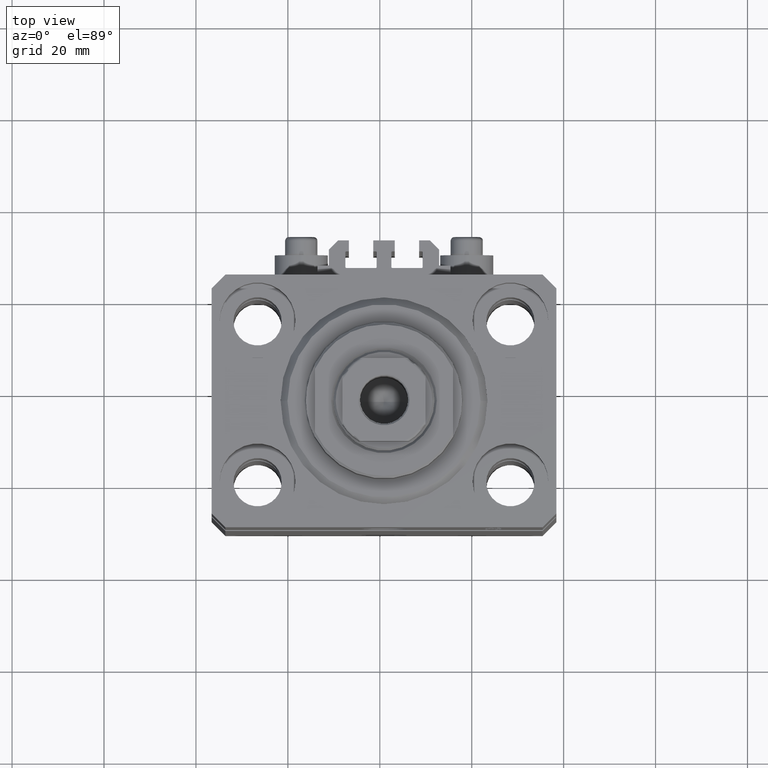
[diagram: clean part render]
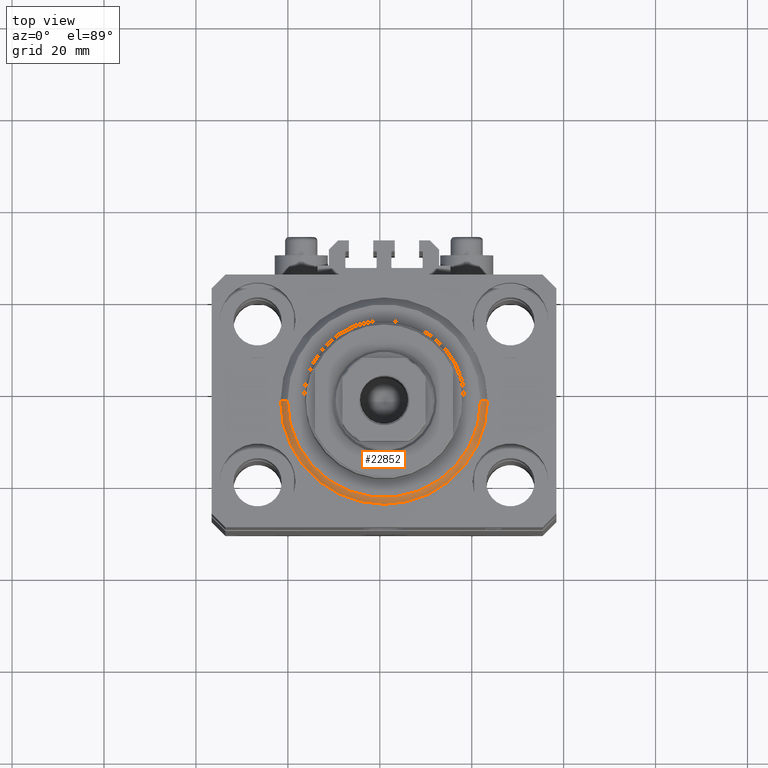
[diagram: same view with one face highlighted and labeled with its STEP entity id]
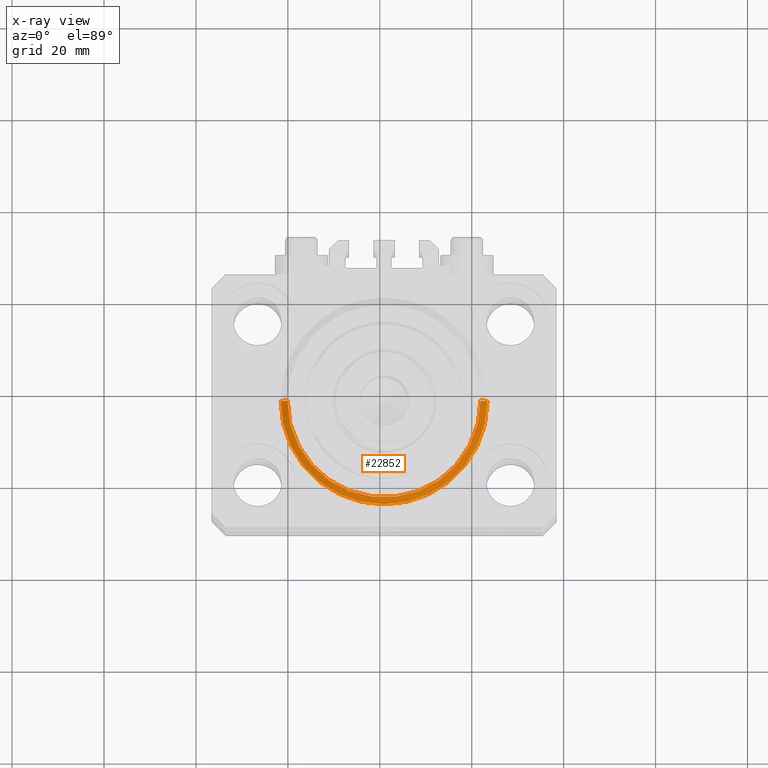
[diagram: x-ray of the same camera — body ghosted, the highlighted face saturated]
A machine part, top view. The second image highlights one B-rep face of the part: STEP entity #22852.
The next image is the same camera in x-ray: the body ghosted, the highlighted face saturated — about 0% of this face is hidden behind the body in this view.
In plain terms, the highlighted conical surface has half-angle 45 deg.
Its self-contained STEP definition (entity closure, byte-faithful):
#51 = VERTEX_POINT ( 'NONE', #41482 ) ;
#388 = EDGE_CURVE ( 'NONE', #43584, #4050, #22669, .T. ) ;
#1195 = EDGE_CURVE ( 'NONE', #51, #2478, #1273, .T. ) ;
#1273 = CIRCLE ( 'NONE', #32595, 20.99999999999995381 ) ;
#1602 = CARTESIAN_POINT ( 'NONE',  ( 0.000000000000000000, 0.000000000000000000, 1.500000000000039524 ) ) ;
#2478 = VERTEX_POINT ( 'NONE', #21731 ) ;
#3288 = DIRECTION ( 'NONE',  ( 1.000000000000000000, 0.000000000000000000, 0.000000000000000000 ) ) ;
#4050 = VERTEX_POINT ( 'NONE', #32427 ) ;
#5272 = LINE ( 'NONE', #19864, #29986 ) ;
#6002 = DIRECTION ( 'NONE',  ( -0.000000000000000000, -0.000000000000000000, -1.000000000000000000 ) ) ;
#6841 = CARTESIAN_POINT ( 'NONE',  ( -22.50000000000000355, 2.755455298081545172E-15, 1.500000000000039524 ) ) ;
#7854 = VECTOR ( 'NONE', #35551, 1000.000000000000114 ) ;
#10425 = LINE ( 'NONE', #6841, #7854 ) ;
#11978 = EDGE_CURVE ( 'NONE', #51, #4050, #5272, .T. ) ;
#12624 = DIRECTION ( 'NONE',  ( 1.000000000000000000, 0.000000000000000000, 0.000000000000000000 ) ) ;
#16413 = ORIENTED_EDGE ( 'NONE', *, *, #1195, .F. ) ;
#16464 = DIRECTION ( 'NONE',  ( -0.000000000000000000, -0.000000000000000000, 1.000000000000000000 ) ) ;
#17831 = ORIENTED_EDGE ( 'NONE', *, *, #11978, .T. ) ;
#19864 = CARTESIAN_POINT ( 'NONE',  ( 22.50000000000000355, 0.000000000000000000, 1.500000000000039524 ) ) ;
#20522 = DIRECTION ( 'NONE',  ( -0.000000000000000000, -0.000000000000000000, 1.000000000000000000 ) ) ;
#21170 = CONICAL_SURFACE ( 'NONE', #27228, 22.50000000000000355, 0.7853981633974517207 ) ;
#21731 = CARTESIAN_POINT ( 'NONE',  ( -20.99999999999995381, 2.663606788145490261E-15, 0.000000000000000000 ) ) ;
#22615 = ORIENTED_EDGE ( 'NONE', *, *, #388, .F. ) ;
#22669 = CIRCLE ( 'NONE', #45596, 22.50000000000000355 ) ;
#22852 = ADVANCED_FACE ( 'NONE', ( #34639 ), #21170, .T. ) ;
#26213 = ORIENTED_EDGE ( 'NONE', *, *, #35741, .F. ) ;
#27228 = AXIS2_PLACEMENT_3D ( 'NONE', #1602, #16464, #12624 ) ;
#29986 = VECTOR ( 'NONE', #41164, 1000.000000000000114 ) ;
#30890 = DIRECTION ( 'NONE',  ( 1.000000000000000000, 0.000000000000000000, 0.000000000000000000 ) ) ;
#32427 = CARTESIAN_POINT ( 'NONE',  ( 22.50000000000000355, 2.755455298081544383E-15, 1.500000000000039524 ) ) ;
#32595 = AXIS2_PLACEMENT_3D ( 'NONE', #42600, #6002, #30890 ) ;
#33984 = CARTESIAN_POINT ( 'NONE',  ( -22.50000000000000355, 0.000000000000000000, 1.500000000000039524 ) ) ;
#34639 = FACE_OUTER_BOUND ( 'NONE', #38475, .T. ) ;
#35551 = DIRECTION ( 'NONE',  ( -0.7071067811865500152, 8.659560562354962440E-17, 0.7071067811865451302 ) ) ;
#35741 = EDGE_CURVE ( 'NONE', #2478, #43584, #10425, .T. ) ;
#38475 = EDGE_LOOP ( 'NONE', ( #26213, #16413, #17831, #22615 ) ) ;
#41164 = DIRECTION ( 'NONE',  ( 0.7071067811865500152, 0.000000000000000000, 0.7071067811865451302 ) ) ;
#41482 = CARTESIAN_POINT ( 'NONE',  ( 20.99999999999995381, 0.000000000000000000, 0.000000000000000000 ) ) ;
#42600 = CARTESIAN_POINT ( 'NONE',  ( 0.000000000000000000, 0.000000000000000000, 0.000000000000000000 ) ) ;
#43584 = VERTEX_POINT ( 'NONE', #33984 ) ;
#45596 = AXIS2_PLACEMENT_3D ( 'NONE', #46857, #20522, #3288 ) ;
#46857 = CARTESIAN_POINT ( 'NONE',  ( 0.000000000000000000, 0.000000000000000000, 1.500000000000039524 ) ) ;